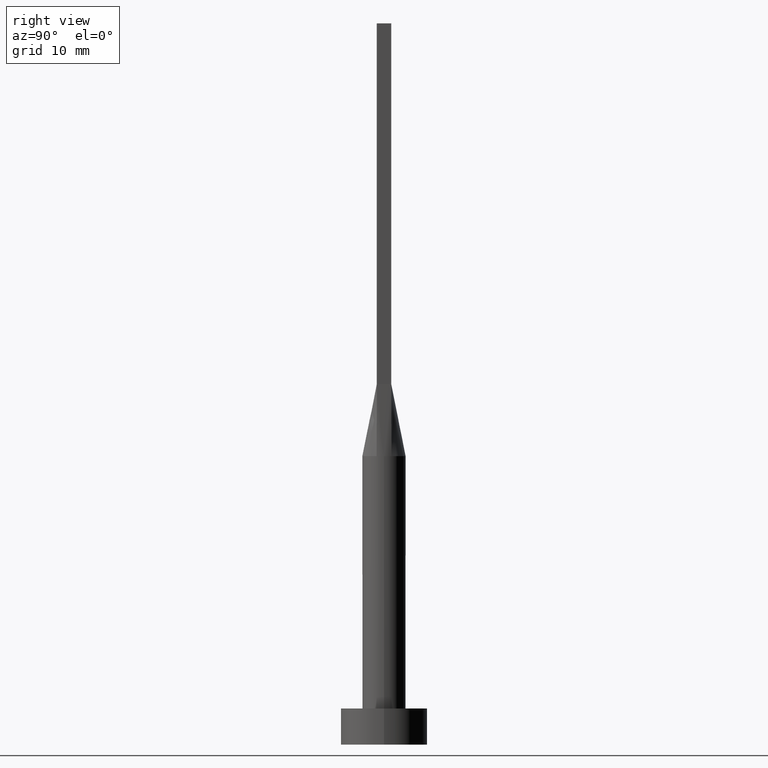
[diagram: clean part render]
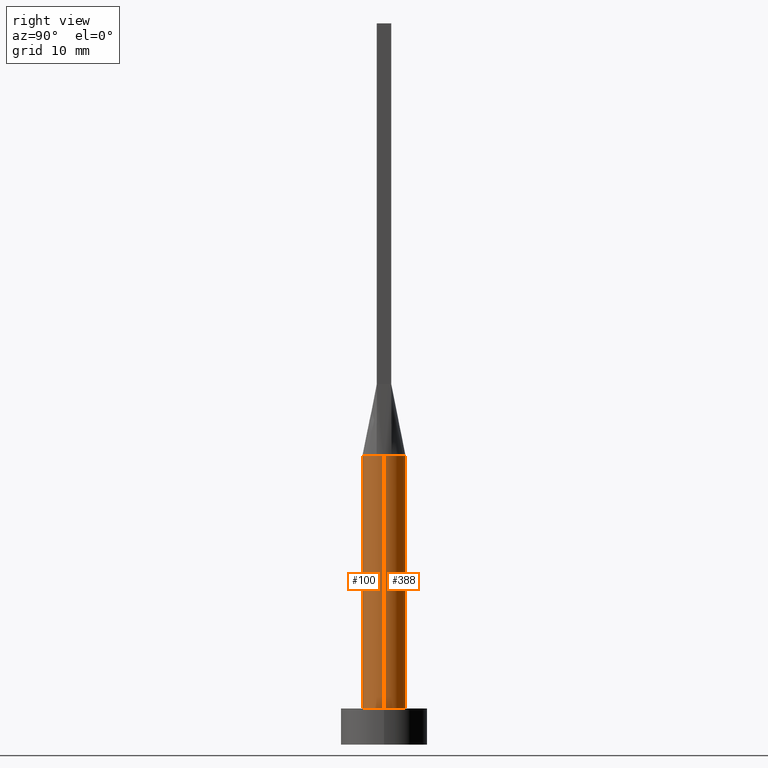
[diagram: same view with one multi-face feature highlighted, each face labeled with its STEP entity id]
A machine part, right view. The highlighted faces form ONE feature: a constant-radius fillet chain: 2 tangent blend faces with common blend radius 3 mm. The faces share edges in the B-rep.
Their STEP definitions:
[1] entity #100 (Cylinder):
#8 = AXIS2_PLACEMENT_3D ( 'NONE', #365, #230, #495 ) ;
#12 = DIRECTION ( 'NONE',  ( 1.000000000000000000, 8.881784197001252323E-16, 0.000000000000000000 ) ) ;
#22 = ORIENTED_EDGE ( 'NONE', *, *, #176, .T. ) ;
#34 = DIRECTION ( 'NONE',  ( 0.000000000000000000, 0.000000000000000000, 1.000000000000000000 ) ) ;
#53 = DIRECTION ( 'NONE',  ( 0.000000000000000000, 0.000000000000000000, 1.000000000000000000 ) ) ;
#62 = CIRCLE ( 'NONE', #408, 3.000000000000000444 ) ;
#70 = EDGE_CURVE ( 'NONE', #447, #248, #175, .T. ) ;
#77 = EDGE_CURVE ( 'NONE', #277, #447, #264, .T. ) ;
#82 = AXIS2_PLACEMENT_3D ( 'NONE', #229, #406, #12 ) ;
#88 = LINE ( 'NONE', #265, #231 ) ;
#92 = CARTESIAN_POINT ( 'NONE',  ( 0.000000000000000000, 0.000000000000000000, 40.00000000000000000 ) ) ;
#97 = DIRECTION ( 'NONE',  ( 1.000000000000000000, 0.000000000000000000, 0.000000000000000000 ) ) ;
#100 = ADVANCED_FACE ( 'NONE', ( #193 ), #312, .T. ) ;
#103 = CARTESIAN_POINT ( 'NONE',  ( 0.000000000000000000, 0.000000000000000000, 40.00000000000000000 ) ) ;
#109 = CARTESIAN_POINT ( 'NONE',  ( 3.000000000000000444, 3.673940397442060361E-16, 40.00000000000000000 ) ) ;
#113 = AXIS2_PLACEMENT_3D ( 'NONE', #92, #53, #97 ) ;
#150 = DIRECTION ( 'NONE',  ( 1.000000000000000000, 0.000000000000000000, 0.000000000000000000 ) ) ;
#175 = CIRCLE ( 'NONE', #113, 3.000000000000000444 ) ;
#176 = EDGE_CURVE ( 'NONE', #326, #501, #62, .T. ) ;
#185 = VECTOR ( 'NONE', #220, 1000.000000000000000 ) ;
#188 = EDGE_CURVE ( 'NONE', #327, #501, #369, .T. ) ;
#193 = FACE_OUTER_BOUND ( 'NONE', #363, .T. ) ;
#199 = ORIENTED_EDGE ( 'NONE', *, *, #486, .F. ) ;
#201 = CARTESIAN_POINT ( 'NONE',  ( 3.000000000000000444, 3.673940397442060361E-16, 5.000000000000000000 ) ) ;
#220 = DIRECTION ( 'NONE',  ( -0.000000000000000000, -0.000000000000000000, -1.000000000000000000 ) ) ;
#229 = CARTESIAN_POINT ( 'NONE',  ( 0.000000000000000000, 0.000000000000000000, 40.00000000000000000 ) ) ;
#230 = DIRECTION ( 'NONE',  ( -0.000000000000000000, -0.000000000000000000, -1.000000000000000000 ) ) ;
#231 = VECTOR ( 'NONE', #260, 1000.000000000000000 ) ;
#237 = ORIENTED_EDGE ( 'NONE', *, *, #70, .F. ) ;
#247 = CARTESIAN_POINT ( 'NONE',  ( -3.000000000000000444, 0.000000000000000000, 5.000000000000000000 ) ) ;
#248 = VERTEX_POINT ( 'NONE', #331 ) ;
#260 = DIRECTION ( 'NONE',  ( -0.000000000000000000, -0.000000000000000000, -1.000000000000000000 ) ) ;
#264 = CIRCLE ( 'NONE', #578, 3.000000000000000444 ) ;
#265 = CARTESIAN_POINT ( 'NONE',  ( -3.000000000000000444, 0.000000000000000000, 40.00000000000000000 ) ) ;
#277 = VERTEX_POINT ( 'NONE', #560 ) ;
#286 = ORIENTED_EDGE ( 'NONE', *, *, #446, .T. ) ;
#293 = CARTESIAN_POINT ( 'NONE',  ( 0.000000000000000000, 0.000000000000000000, 5.000000000000000000 ) ) ;
#312 = CYLINDRICAL_SURFACE ( 'NONE', #8, 3.000000000000000444 ) ;
#326 = VERTEX_POINT ( 'NONE', #247 ) ;
#327 = VERTEX_POINT ( 'NONE', #413 ) ;
#331 = CARTESIAN_POINT ( 'NONE',  ( 2.819430526142641558, -1.025247683279450817, 40.00000000000000000 ) ) ;
#341 = CIRCLE ( 'NONE', #82, 3.000000000000000444 ) ;
#363 = EDGE_LOOP ( 'NONE', ( #468, #199, #237, #523, #286, #22 ) ) ;
#365 = CARTESIAN_POINT ( 'NONE',  ( 0.000000000000000000, 0.000000000000000000, 40.00000000000000000 ) ) ;
#369 = LINE ( 'NONE', #109, #185 ) ;
#386 = CARTESIAN_POINT ( 'NONE',  ( -2.819413526938078007, -1.025241406939941369, 40.00000000000000000 ) ) ;
#406 = DIRECTION ( 'NONE',  ( 0.000000000000000000, 0.000000000000000000, 1.000000000000000000 ) ) ;
#408 = AXIS2_PLACEMENT_3D ( 'NONE', #293, #34, #466 ) ;
#413 = CARTESIAN_POINT ( 'NONE',  ( 3.000000000000000444, 7.514166843208536743E-18, 39.99999999999999289 ) ) ;
#446 = EDGE_CURVE ( 'NONE', #277, #326, #88, .T. ) ;
#447 = VERTEX_POINT ( 'NONE', #386 ) ;
#466 = DIRECTION ( 'NONE',  ( 1.000000000000000000, 0.000000000000000000, 0.000000000000000000 ) ) ;
#468 = ORIENTED_EDGE ( 'NONE', *, *, #188, .F. ) ;
#486 = EDGE_CURVE ( 'NONE', #248, #327, #341, .T. ) ;
#495 = DIRECTION ( 'NONE',  ( -1.000000000000000000, 0.000000000000000000, 0.000000000000000000 ) ) ;
#500 = DIRECTION ( 'NONE',  ( 0.000000000000000000, 0.000000000000000000, 1.000000000000000000 ) ) ;
#501 = VERTEX_POINT ( 'NONE', #201 ) ;
#523 = ORIENTED_EDGE ( 'NONE', *, *, #77, .F. ) ;
#560 = CARTESIAN_POINT ( 'NONE',  ( -3.000000000000000444, -1.370010780910363192E-16, 39.99999999999999289 ) ) ;
#578 = AXIS2_PLACEMENT_3D ( 'NONE', #103, #500, #150 ) ;
[2] entity #388 (Cylinder):
#7 = EDGE_CURVE ( 'NONE', #327, #315, #133, .T. ) ;
#13 = CARTESIAN_POINT ( 'NONE',  ( 2.115507543051069916, 2.149870311632976705, 40.00000000000000711 ) ) ;
#19 = CIRCLE ( 'NONE', #354, 3.000000000000000444 ) ;
#21 = ORIENTED_EDGE ( 'NONE', *, *, #261, .F. ) ;
#30 = EDGE_CURVE ( 'NONE', #501, #326, #19, .T. ) ;
#55 = CARTESIAN_POINT ( 'NONE',  ( -2.314486317179579977, 1.928337902455808051, 40.00000000000000000 ) ) ;
#57 = CARTESIAN_POINT ( 'NONE',  ( -2.819429393986302657, 1.025247261300842760, 40.00000000000000000 ) ) ;
#88 = LINE ( 'NONE', #265, #231 ) ;
#94 = CARTESIAN_POINT ( 'NONE',  ( 0.6998073349918605413, 2.936959335800557014, 40.00000000000000000 ) ) ;
#99 = CARTESIAN_POINT ( 'NONE',  ( 0.3502136323054376721, 3.000000000000000444, 40.00000000000000000 ) ) ;
#109 = CARTESIAN_POINT ( 'NONE',  ( 3.000000000000000444, 3.673940397442060361E-16, 40.00000000000000000 ) ) ;
#110 = EDGE_CURVE ( 'NONE', #315, #195, #115, .T. ) ;
#115 = B_SPLINE_CURVE_WITH_KNOTS ( 'NONE', 3,
 ( #197, #529, #407, #140, #13, #542, #445, #94, #99, #271, #269, #539, #276, #449, #55, #239, #316, #57 ),
 .UNSPECIFIED., .F., .F.,
 ( 4, 2, 2, 2, 2, 2, 2, 2, 4 ),
 ( 0.000000000000000000, 0.1249999999999998890, 0.2499999999999997780, 0.3749999999999997780, 0.4999999999999997780, 0.6249999999999997780, 0.7499999999999997780, 0.8749999999999998890, 1.000000000000000000 ),
 .UNSPECIFIED. ) ;
#120 = DIRECTION ( 'NONE',  ( 1.000000000000000000, 0.000000000000000000, 0.000000000000000000 ) ) ;
#123 = CARTESIAN_POINT ( 'NONE',  ( -2.819429393986302657, 1.025247261300842760, 40.00000000000000000 ) ) ;
#133 = CIRCLE ( 'NONE', #424, 3.000000000000000444 ) ;
#135 = CYLINDRICAL_SURFACE ( 'NONE', #478, 3.000000000000000444 ) ;
#140 = CARTESIAN_POINT ( 'NONE',  ( 2.314486317179579977, 1.928337902455807384, 40.00000000000000000 ) ) ;
#153 = ORIENTED_EDGE ( 'NONE', *, *, #7, .F. ) ;
#173 = CARTESIAN_POINT ( 'NONE',  ( 0.000000000000000000, 0.000000000000000000, 40.00000000000000000 ) ) ;
#178 = DIRECTION ( 'NONE',  ( -0.000000000000000000, -0.000000000000000000, -1.000000000000000000 ) ) ;
#181 = DIRECTION ( 'NONE',  ( 0.000000000000000000, 0.000000000000000000, 1.000000000000000000 ) ) ;
#185 = VECTOR ( 'NONE', #220, 1000.000000000000000 ) ;
#188 = EDGE_CURVE ( 'NONE', #327, #501, #369, .T. ) ;
#195 = VERTEX_POINT ( 'NONE', #123 ) ;
#197 = CARTESIAN_POINT ( 'NONE',  ( 2.819412401233197141, 1.025240989080170806, 40.00000000000000000 ) ) ;
#201 = CARTESIAN_POINT ( 'NONE',  ( 3.000000000000000444, 3.673940397442060361E-16, 5.000000000000000000 ) ) ;
#220 = DIRECTION ( 'NONE',  ( -0.000000000000000000, -0.000000000000000000, -1.000000000000000000 ) ) ;
#223 = FACE_OUTER_BOUND ( 'NONE', #574, .T. ) ;
#228 = CARTESIAN_POINT ( 'NONE',  ( 0.000000000000000000, 0.000000000000000000, 5.000000000000000000 ) ) ;
#231 = VECTOR ( 'NONE', #260, 1000.000000000000000 ) ;
#239 = CARTESIAN_POINT ( 'NONE',  ( -2.625980160873452096, 1.476334031700886396, 39.99999999999998579 ) ) ;
#247 = CARTESIAN_POINT ( 'NONE',  ( -3.000000000000000444, 0.000000000000000000, 5.000000000000000000 ) ) ;
#260 = DIRECTION ( 'NONE',  ( -0.000000000000000000, -0.000000000000000000, -1.000000000000000000 ) ) ;
#261 = EDGE_CURVE ( 'NONE', #195, #277, #534, .T. ) ;
#265 = CARTESIAN_POINT ( 'NONE',  ( -3.000000000000000444, 0.000000000000000000, 40.00000000000000000 ) ) ;
#269 = CARTESIAN_POINT ( 'NONE',  ( -0.6998073349918608743, 2.936959335800557014, 40.00000000000000000 ) ) ;
#271 = CARTESIAN_POINT ( 'NONE',  ( -0.3502136323054376721, 2.999999999999999112, 39.99999999999999289 ) ) ;
#276 = CARTESIAN_POINT ( 'NONE',  ( -1.627925520694712747, 2.539128397820341831, 40.00000000000000711 ) ) ;
#277 = VERTEX_POINT ( 'NONE', #560 ) ;
#291 = AXIS2_PLACEMENT_3D ( 'NONE', #473, #514, #120 ) ;
#306 = ORIENTED_EDGE ( 'NONE', *, *, #30, .T. ) ;
#308 = DIRECTION ( 'NONE',  ( 1.000000000000000000, 0.000000000000000000, 0.000000000000000000 ) ) ;
#315 = VERTEX_POINT ( 'NONE', #321 ) ;
#316 = CARTESIAN_POINT ( 'NONE',  ( -2.739088299662392423, 1.246032108968142316, 40.00000000000000000 ) ) ;
#321 = CARTESIAN_POINT ( 'NONE',  ( 2.819412401233197141, 1.025240989080170806, 40.00000000000000000 ) ) ;
#326 = VERTEX_POINT ( 'NONE', #247 ) ;
#327 = VERTEX_POINT ( 'NONE', #413 ) ;
#354 = AXIS2_PLACEMENT_3D ( 'NONE', #228, #380, #391 ) ;
#369 = LINE ( 'NONE', #109, #185 ) ;
#380 = DIRECTION ( 'NONE',  ( 0.000000000000000000, 0.000000000000000000, 1.000000000000000000 ) ) ;
#388 = ADVANCED_FACE ( 'NONE', ( #223 ), #135, .T. ) ;
#391 = DIRECTION ( 'NONE',  ( 1.000000000000000000, 0.000000000000000000, 0.000000000000000000 ) ) ;
#407 = CARTESIAN_POINT ( 'NONE',  ( 2.625980160873452540, 1.476334031700886618, 40.00000000000000000 ) ) ;
#413 = CARTESIAN_POINT ( 'NONE',  ( 3.000000000000000444, 7.514166843208536743E-18, 39.99999999999999289 ) ) ;
#424 = AXIS2_PLACEMENT_3D ( 'NONE', #173, #181, #308 ) ;
#445 = CARTESIAN_POINT ( 'NONE',  ( 1.338960936578149630, 2.706038443291637563, 40.00000000000000000 ) ) ;
#446 = EDGE_CURVE ( 'NONE', #277, #326, #88, .T. ) ;
#449 = CARTESIAN_POINT ( 'NONE',  ( -2.115507543051069916, 2.149870311632977593, 39.99999999999999289 ) ) ;
#473 = CARTESIAN_POINT ( 'NONE',  ( 0.000000000000000000, 0.000000000000000000, 40.00000000000000000 ) ) ;
#478 = AXIS2_PLACEMENT_3D ( 'NONE', #483, #178, #479 ) ;
#479 = DIRECTION ( 'NONE',  ( -1.000000000000000000, 0.000000000000000000, 0.000000000000000000 ) ) ;
#483 = CARTESIAN_POINT ( 'NONE',  ( 0.000000000000000000, 0.000000000000000000, 40.00000000000000000 ) ) ;
#501 = VERTEX_POINT ( 'NONE', #201 ) ;
#505 = ORIENTED_EDGE ( 'NONE', *, *, #110, .F. ) ;
#514 = DIRECTION ( 'NONE',  ( 0.000000000000000000, 0.000000000000000000, 1.000000000000000000 ) ) ;
#529 = CARTESIAN_POINT ( 'NONE',  ( 2.739088299662392867, 1.246032108968142538, 40.00000000000000711 ) ) ;
#534 = CIRCLE ( 'NONE', #291, 3.000000000000000444 ) ;
#539 = CARTESIAN_POINT ( 'NONE',  ( -1.338960936578149408, 2.706038443291637119, 39.99999999999999289 ) ) ;
#542 = CARTESIAN_POINT ( 'NONE',  ( 1.627925520694712080, 2.539128397820340943, 40.00000000000000000 ) ) ;
#549 = ORIENTED_EDGE ( 'NONE', *, *, #188, .T. ) ;
#560 = CARTESIAN_POINT ( 'NONE',  ( -3.000000000000000444, -1.370010780910363192E-16, 39.99999999999999289 ) ) ;
#561 = ORIENTED_EDGE ( 'NONE', *, *, #446, .F. ) ;
#574 = EDGE_LOOP ( 'NONE', ( #153, #549, #306, #561, #21, #505 ) ) ;